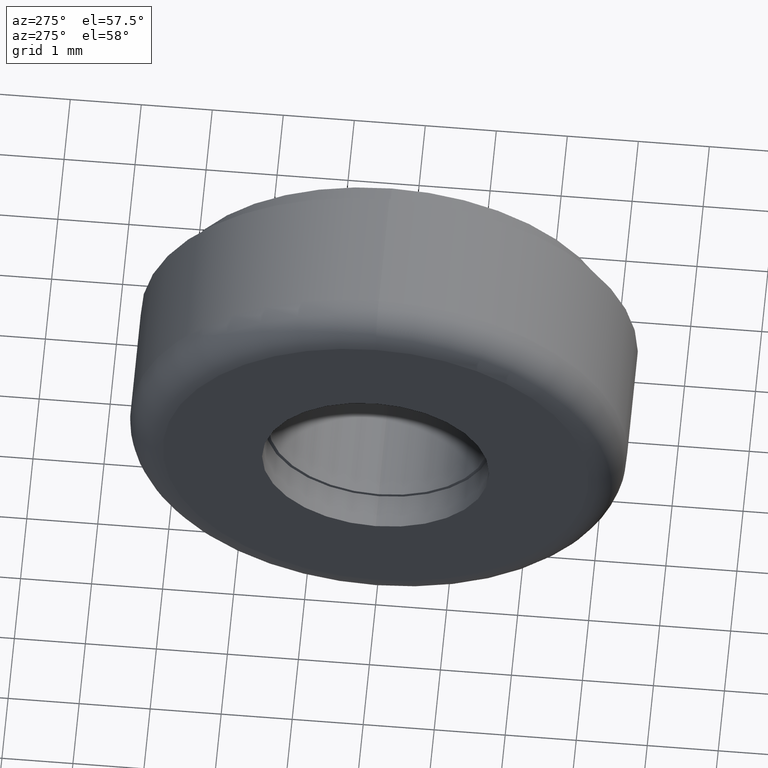
[diagram: clean part render]
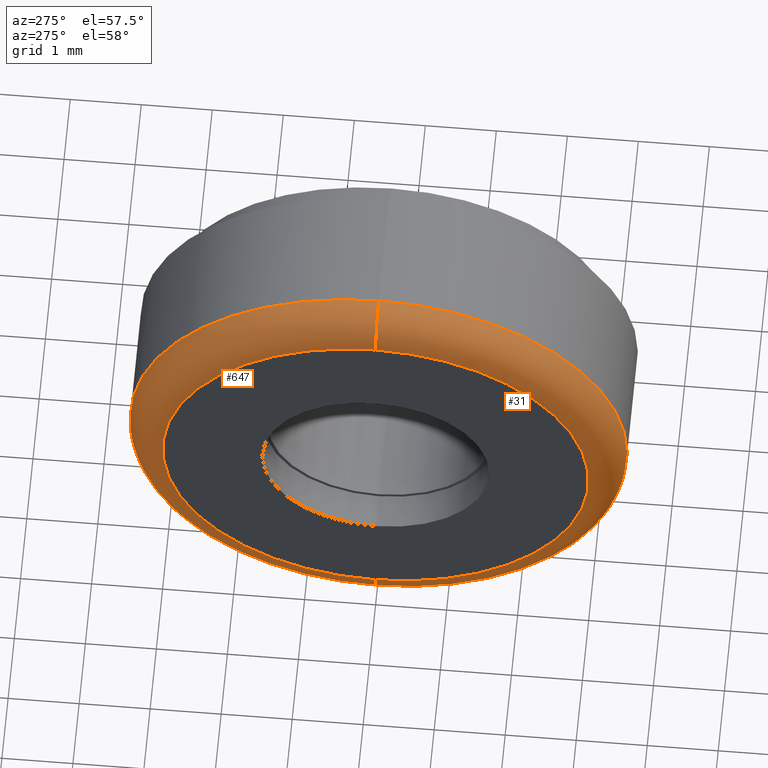
[diagram: same view with one multi-face feature highlighted, each face labeled with its STEP entity id]
A machine part, auxiliary view. The highlighted faces form ONE feature: a constant-radius fillet chain: 2 tangent blend faces with common blend radius 0.5 mm. The faces share edges in the B-rep.
Their STEP definitions:
[1] entity #647 (Torus):
#35 = ORIENTED_EDGE ( 'NONE', *, *, #456, .F. ) ;
#38 = EDGE_CURVE ( 'NONE', #630, #434, #161, .T. ) ;
#65 = CARTESIAN_POINT ( 'NONE',  ( 0.0000000000000000000, 3.980102097228897700E-016, 3.000000000000000000 ) ) ;
#68 = CARTESIAN_POINT ( 'NONE',  ( 0.5000000000000000000, 0.0000000000000000000, -3.000000000000000000 ) ) ;
#69 = ORIENTED_EDGE ( 'NONE', *, *, #38, .F. ) ;
#73 = DIRECTION ( 'NONE',  ( 0.0000000000000000000, 0.0000000000000000000, -1.000000000000000000 ) ) ;
#81 = FACE_OUTER_BOUND ( 'NONE', #684, .T. ) ;
#161 = CIRCLE ( 'NONE', #458, 3.000000000000000000 ) ;
#179 = AXIS2_PLACEMENT_3D ( 'NONE', #68, #327, #73 ) ;
#232 = CIRCLE ( 'NONE', #243, 0.5000000000000000000 ) ;
#243 = AXIS2_PLACEMENT_3D ( 'NONE', #420, #341, #517 ) ;
#278 = CARTESIAN_POINT ( 'NONE',  ( 0.0000000000000000000, 0.0000000000000000000, -3.000000000000000000 ) ) ;
#283 = CARTESIAN_POINT ( 'NONE',  ( 0.5000000000000000000, 0.0000000000000000000, 3.500000000000000000 ) ) ;
#296 = VERTEX_POINT ( 'NONE', #356 ) ;
#327 = DIRECTION ( 'NONE',  ( 0.0000000000000000000, -1.000000000000000000, 0.0000000000000000000 ) ) ;
#341 = DIRECTION ( 'NONE',  ( 0.0000000000000000000, 1.000000000000000000, -1.224646799147353200E-016 ) ) ;
#356 = CARTESIAN_POINT ( 'NONE',  ( 0.5000000000000000000, 4.286263797015736600E-016, -3.500000000000000000 ) ) ;
#361 = AXIS2_PLACEMENT_3D ( 'NONE', #612, #690, #400 ) ;
#389 = DIRECTION ( 'NONE',  ( -1.000000000000000000, -0.0000000000000000000, -0.0000000000000000000 ) ) ;
#393 = EDGE_CURVE ( 'NONE', #434, #296, #693, .T. ) ;
#400 = DIRECTION ( 'NONE',  ( 0.0000000000000000000, 0.0000000000000000000, -1.000000000000000000 ) ) ;
#417 = EDGE_CURVE ( 'NONE', #630, #513, #232, .T. ) ;
#420 = CARTESIAN_POINT ( 'NONE',  ( 0.5000000000000000000, 3.673940397442059900E-016, 3.000000000000000000 ) ) ;
#434 = VERTEX_POINT ( 'NONE', #278 ) ;
#445 = DIRECTION ( 'NONE',  ( 0.0000000000000000000, 0.0000000000000000000, -1.000000000000000000 ) ) ;
#453 = AXIS2_PLACEMENT_3D ( 'NONE', #466, #584, #528 ) ;
#456 = EDGE_CURVE ( 'NONE', #296, #513, #665, .T. ) ;
#458 = AXIS2_PLACEMENT_3D ( 'NONE', #659, #389, #445 ) ;
#466 = CARTESIAN_POINT ( 'NONE',  ( 0.5000000000000000000, 0.0000000000000000000, 0.0000000000000000000 ) ) ;
#503 = TOROIDAL_SURFACE ( 'NONE', #453, 3.000000000000000000, 0.5000000000000000000 ) ;
#513 = VERTEX_POINT ( 'NONE', #283 ) ;
#517 = DIRECTION ( 'NONE',  ( 0.0000000000000000000, 1.224646799147353500E-016, 1.000000000000000000 ) ) ;
#528 = DIRECTION ( 'NONE',  ( 0.0000000000000000000, 0.0000000000000000000, -1.000000000000000000 ) ) ;
#546 = ORIENTED_EDGE ( 'NONE', *, *, #417, .T. ) ;
#584 = DIRECTION ( 'NONE',  ( 1.000000000000000000, 0.0000000000000000000, 0.0000000000000000000 ) ) ;
#612 = CARTESIAN_POINT ( 'NONE',  ( 0.5000000000000000000, 0.0000000000000000000, 0.0000000000000000000 ) ) ;
#630 = VERTEX_POINT ( 'NONE', #65 ) ;
#647 = ADVANCED_FACE ( 'NONE', ( #81 ), #503, .T. ) ;
#659 = CARTESIAN_POINT ( 'NONE',  ( 0.0000000000000000000, 0.0000000000000000000, 0.0000000000000000000 ) ) ;
#665 = CIRCLE ( 'NONE', #361, 3.500000000000000000 ) ;
#684 = EDGE_LOOP ( 'NONE', ( #69, #546, #35, #711 ) ) ;
#690 = DIRECTION ( 'NONE',  ( 1.000000000000000000, 0.0000000000000000000, 0.0000000000000000000 ) ) ;
#693 = CIRCLE ( 'NONE', #179, 0.5000000000000000000 ) ;
#711 = ORIENTED_EDGE ( 'NONE', *, *, #393, .F. ) ;
[2] entity #31 (Torus):
#31 = ADVANCED_FACE ( 'NONE', ( #332 ), #43, .T. ) ;
#43 = TOROIDAL_SURFACE ( 'NONE', #430, 3.000000000000000000, 0.5000000000000000000 ) ;
#63 = DIRECTION ( 'NONE',  ( 0.0000000000000000000, 0.0000000000000000000, -1.000000000000000000 ) ) ;
#65 = CARTESIAN_POINT ( 'NONE',  ( 0.0000000000000000000, 3.980102097228897700E-016, 3.000000000000000000 ) ) ;
#68 = CARTESIAN_POINT ( 'NONE',  ( 0.5000000000000000000, 0.0000000000000000000, -3.000000000000000000 ) ) ;
#73 = DIRECTION ( 'NONE',  ( 0.0000000000000000000, 0.0000000000000000000, -1.000000000000000000 ) ) ;
#177 = DIRECTION ( 'NONE',  ( 1.000000000000000000, 0.0000000000000000000, 0.0000000000000000000 ) ) ;
#179 = AXIS2_PLACEMENT_3D ( 'NONE', #68, #327, #73 ) ;
#214 = DIRECTION ( 'NONE',  ( 1.000000000000000000, 0.0000000000000000000, 0.0000000000000000000 ) ) ;
#224 = DIRECTION ( 'NONE',  ( -1.000000000000000000, -0.0000000000000000000, -0.0000000000000000000 ) ) ;
#226 = CARTESIAN_POINT ( 'NONE',  ( 0.5000000000000000000, 0.0000000000000000000, 0.0000000000000000000 ) ) ;
#232 = CIRCLE ( 'NONE', #243, 0.5000000000000000000 ) ;
#243 = AXIS2_PLACEMENT_3D ( 'NONE', #420, #341, #517 ) ;
#278 = CARTESIAN_POINT ( 'NONE',  ( 0.0000000000000000000, 0.0000000000000000000, -3.000000000000000000 ) ) ;
#279 = CARTESIAN_POINT ( 'NONE',  ( 0.0000000000000000000, 0.0000000000000000000, 0.0000000000000000000 ) ) ;
#281 = AXIS2_PLACEMENT_3D ( 'NONE', #226, #177, #63 ) ;
#283 = CARTESIAN_POINT ( 'NONE',  ( 0.5000000000000000000, 0.0000000000000000000, 3.500000000000000000 ) ) ;
#290 = ORIENTED_EDGE ( 'NONE', *, *, #439, .F. ) ;
#296 = VERTEX_POINT ( 'NONE', #356 ) ;
#315 = AXIS2_PLACEMENT_3D ( 'NONE', #279, #224, #608 ) ;
#327 = DIRECTION ( 'NONE',  ( 0.0000000000000000000, -1.000000000000000000, 0.0000000000000000000 ) ) ;
#332 = FACE_OUTER_BOUND ( 'NONE', #535, .T. ) ;
#341 = DIRECTION ( 'NONE',  ( 0.0000000000000000000, 1.000000000000000000, -1.224646799147353200E-016 ) ) ;
#356 = CARTESIAN_POINT ( 'NONE',  ( 0.5000000000000000000, 4.286263797015736600E-016, -3.500000000000000000 ) ) ;
#380 = CIRCLE ( 'NONE', #281, 3.500000000000000000 ) ;
#393 = EDGE_CURVE ( 'NONE', #434, #296, #693, .T. ) ;
#417 = EDGE_CURVE ( 'NONE', #630, #513, #232, .T. ) ;
#420 = CARTESIAN_POINT ( 'NONE',  ( 0.5000000000000000000, 3.673940397442059900E-016, 3.000000000000000000 ) ) ;
#430 = AXIS2_PLACEMENT_3D ( 'NONE', #493, #214, #672 ) ;
#434 = VERTEX_POINT ( 'NONE', #278 ) ;
#439 = EDGE_CURVE ( 'NONE', #513, #296, #380, .T. ) ;
#451 = EDGE_CURVE ( 'NONE', #434, #630, #514, .T. ) ;
#493 = CARTESIAN_POINT ( 'NONE',  ( 0.5000000000000000000, 0.0000000000000000000, 0.0000000000000000000 ) ) ;
#513 = VERTEX_POINT ( 'NONE', #283 ) ;
#514 = CIRCLE ( 'NONE', #315, 3.000000000000000000 ) ;
#517 = DIRECTION ( 'NONE',  ( 0.0000000000000000000, 1.224646799147353500E-016, 1.000000000000000000 ) ) ;
#535 = EDGE_LOOP ( 'NONE', ( #616, #569, #657, #290 ) ) ;
#569 = ORIENTED_EDGE ( 'NONE', *, *, #451, .F. ) ;
#608 = DIRECTION ( 'NONE',  ( 0.0000000000000000000, 0.0000000000000000000, -1.000000000000000000 ) ) ;
#616 = ORIENTED_EDGE ( 'NONE', *, *, #417, .F. ) ;
#630 = VERTEX_POINT ( 'NONE', #65 ) ;
#657 = ORIENTED_EDGE ( 'NONE', *, *, #393, .T. ) ;
#672 = DIRECTION ( 'NONE',  ( 0.0000000000000000000, 0.0000000000000000000, -1.000000000000000000 ) ) ;
#693 = CIRCLE ( 'NONE', #179, 0.5000000000000000000 ) ;